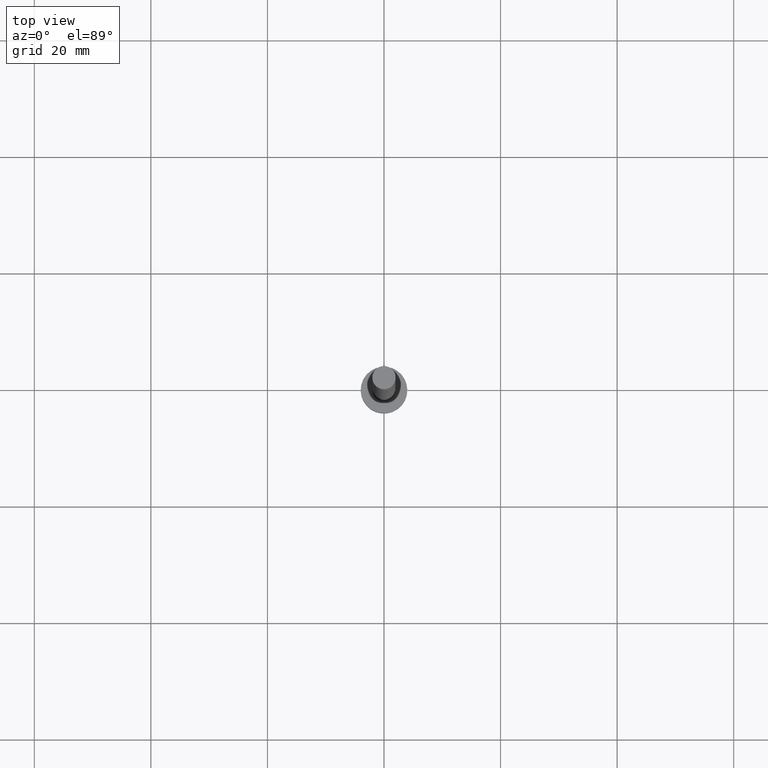
[diagram: clean part render]
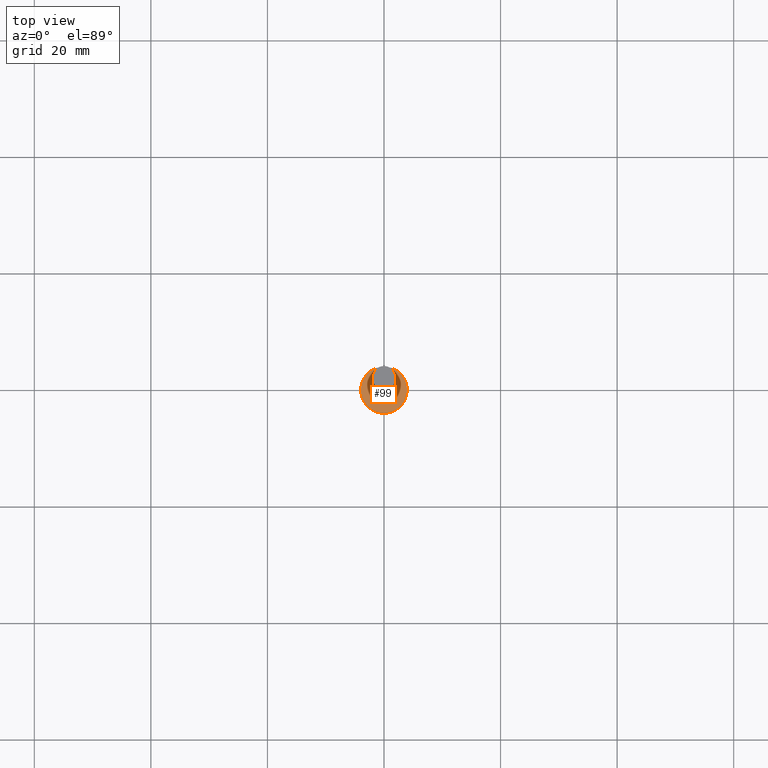
[diagram: same view with one face highlighted and labeled with its STEP entity id]
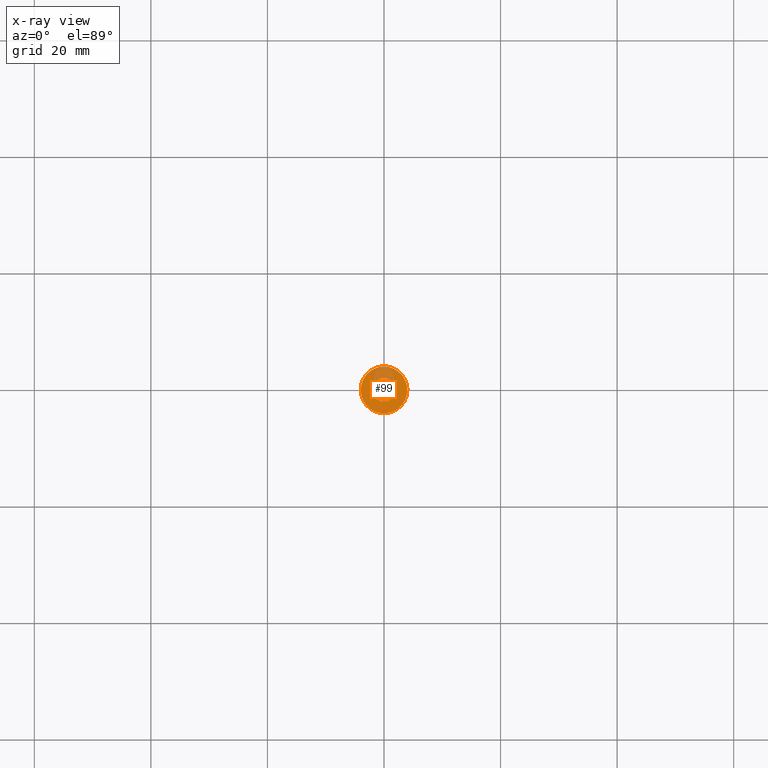
[diagram: x-ray of the same camera — body ghosted, the highlighted face saturated]
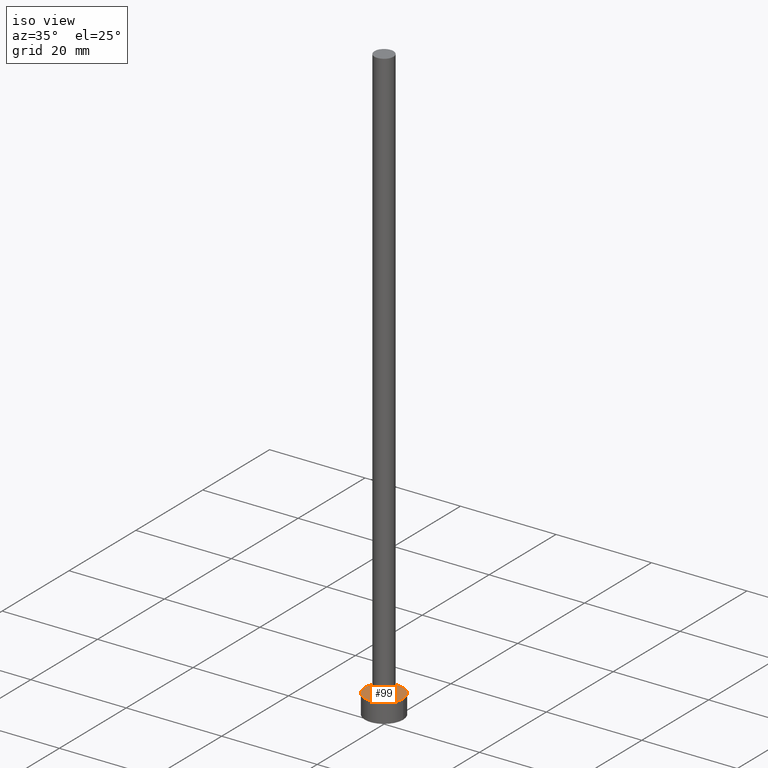
[diagram: same view with one face highlighted and labeled with its STEP entity id]
A machine part, top view. The second image highlights one B-rep face of the part: STEP entity #99.
The next image is the same camera in x-ray: the body ghosted, the highlighted face saturated — about 22% of this face is hidden behind the body in this view.
A second angle (iso view) of the same face is appended — the face is thin or edge-on in the first view.
In plain terms, the highlighted planar face has unit normal (0, 0, 1).
Its self-contained STEP definition (entity closure, byte-faithful):
#3 = EDGE_CURVE ( 'NONE', #242, #41, #128, .T. ) ;
#22 = FACE_OUTER_BOUND ( 'NONE', #195, .T. ) ;
#25 = ORIENTED_EDGE ( 'NONE', *, *, #172, .F. ) ;
#27 = DIRECTION ( 'NONE',  ( 1.000000000000000000, 0.000000000000000000, 0.000000000000000000 ) ) ;
#29 = CARTESIAN_POINT ( 'NONE',  ( 0.000000000000000000, 0.000000000000000000, 4.000000000000000000 ) ) ;
#35 = DIRECTION ( 'NONE',  ( 1.000000000000000000, 0.000000000000000000, 0.000000000000000000 ) ) ;
#40 = DIRECTION ( 'NONE',  ( 0.000000000000000000, 0.000000000000000000, 1.000000000000000000 ) ) ;
#41 = VERTEX_POINT ( 'NONE', #50 ) ;
#44 = CARTESIAN_POINT ( 'NONE',  ( 0.000000000000000000, 0.000000000000000000, 4.000000000000000000 ) ) ;
#50 = CARTESIAN_POINT ( 'NONE',  ( 2.000000000000000000, 2.449293598294706414E-16, 4.000000000000000000 ) ) ;
#51 = CIRCLE ( 'NONE', #192, 2.000000000000000000 ) ;
#62 = DIRECTION ( 'NONE',  ( 1.000000000000000000, 0.000000000000000000, 0.000000000000000000 ) ) ;
#67 = AXIS2_PLACEMENT_3D ( 'NONE', #29, #121, #239 ) ;
#71 = PLANE ( 'NONE',  #118 ) ;
#72 = FACE_BOUND ( 'NONE', #159, .T. ) ;
#77 = DIRECTION ( 'NONE',  ( 0.000000000000000000, 0.000000000000000000, 1.000000000000000000 ) ) ;
#91 = DIRECTION ( 'NONE',  ( 0.000000000000000000, 0.000000000000000000, 1.000000000000000000 ) ) ;
#97 = ORIENTED_EDGE ( 'NONE', *, *, #241, .T. ) ;
#99 = ADVANCED_FACE ( 'NONE', ( #72, #22 ), #71, .T. ) ;
#103 = CARTESIAN_POINT ( 'NONE',  ( -4.000000000000000000, 0.000000000000000000, 4.000000000000000000 ) ) ;
#118 = AXIS2_PLACEMENT_3D ( 'NONE', #237, #40, #201 ) ;
#119 = AXIS2_PLACEMENT_3D ( 'NONE', #120, #77, #27 ) ;
#120 = CARTESIAN_POINT ( 'NONE',  ( 0.000000000000000000, 0.000000000000000000, 4.000000000000000000 ) ) ;
#121 = DIRECTION ( 'NONE',  ( 0.000000000000000000, 0.000000000000000000, 1.000000000000000000 ) ) ;
#125 = CARTESIAN_POINT ( 'NONE',  ( 4.000000000000000000, 4.898587196589412829E-16, 4.000000000000000000 ) ) ;
#126 = EDGE_CURVE ( 'NONE', #154, #223, #158, .T. ) ;
#128 = CIRCLE ( 'NONE', #180, 2.000000000000000000 ) ;
#140 = DIRECTION ( 'NONE',  ( 0.000000000000000000, 0.000000000000000000, 1.000000000000000000 ) ) ;
#154 = VERTEX_POINT ( 'NONE', #103 ) ;
#158 = CIRCLE ( 'NONE', #67, 4.000000000000000000 ) ;
#159 = EDGE_LOOP ( 'NONE', ( #228, #25 ) ) ;
#161 = CARTESIAN_POINT ( 'NONE',  ( -2.000000000000000000, 0.000000000000000000, 4.000000000000000000 ) ) ;
#165 = CIRCLE ( 'NONE', #119, 4.000000000000000000 ) ;
#172 = EDGE_CURVE ( 'NONE', #41, #242, #51, .T. ) ;
#177 = ORIENTED_EDGE ( 'NONE', *, *, #126, .T. ) ;
#180 = AXIS2_PLACEMENT_3D ( 'NONE', #234, #91, #35 ) ;
#192 = AXIS2_PLACEMENT_3D ( 'NONE', #44, #140, #62 ) ;
#195 = EDGE_LOOP ( 'NONE', ( #177, #97 ) ) ;
#201 = DIRECTION ( 'NONE',  ( 1.000000000000000000, 0.000000000000000000, -0.000000000000000000 ) ) ;
#223 = VERTEX_POINT ( 'NONE', #125 ) ;
#228 = ORIENTED_EDGE ( 'NONE', *, *, #3, .F. ) ;
#234 = CARTESIAN_POINT ( 'NONE',  ( 0.000000000000000000, 0.000000000000000000, 4.000000000000000000 ) ) ;
#237 = CARTESIAN_POINT ( 'NONE',  ( 0.000000000000000000, 0.000000000000000000, 4.000000000000000000 ) ) ;
#239 = DIRECTION ( 'NONE',  ( 1.000000000000000000, 0.000000000000000000, 0.000000000000000000 ) ) ;
#241 = EDGE_CURVE ( 'NONE', #223, #154, #165, .T. ) ;
#242 = VERTEX_POINT ( 'NONE', #161 ) ;